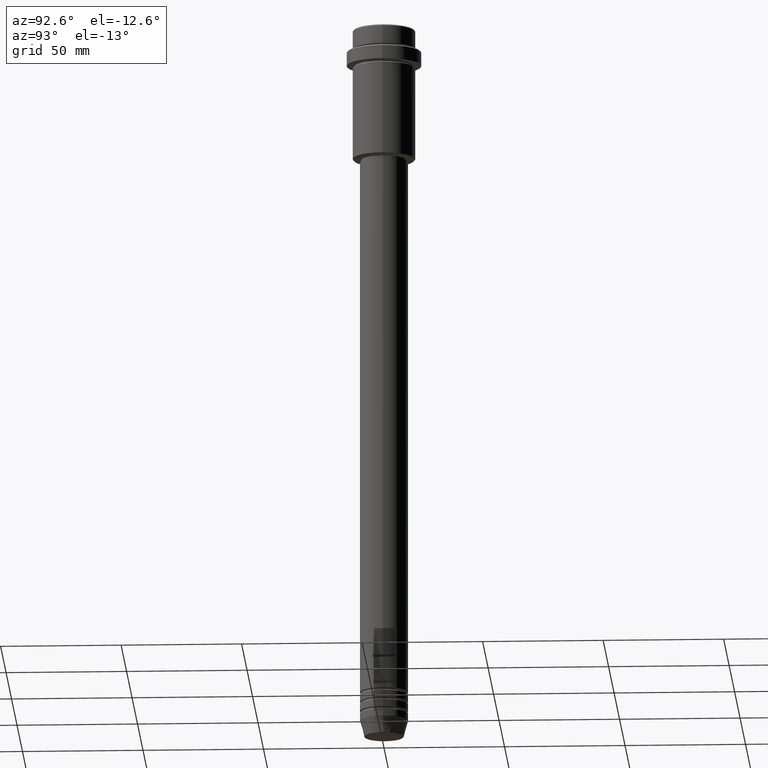
[diagram: clean part render]
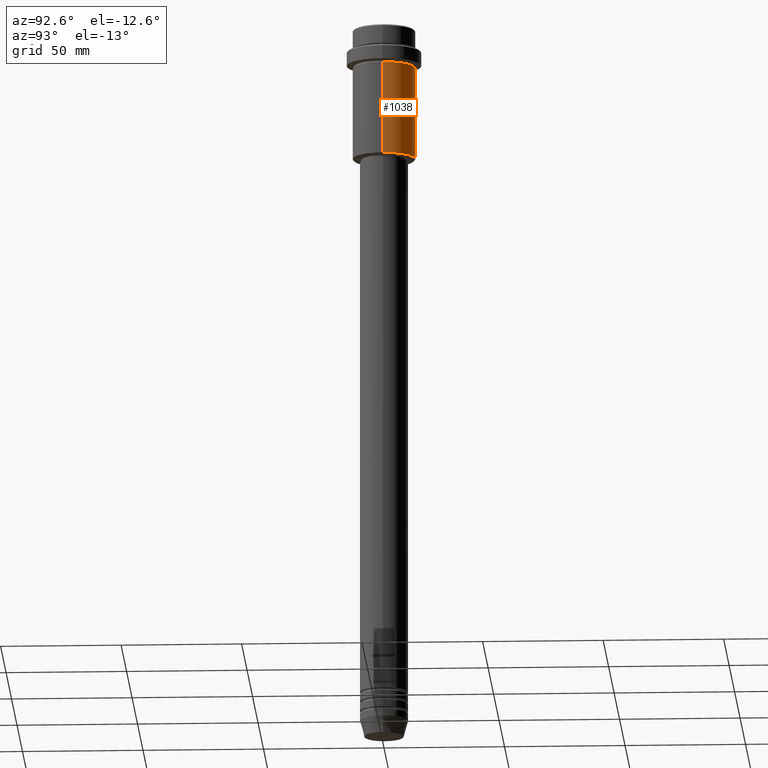
[diagram: same view with one face highlighted and labeled with its STEP entity id]
A machine part, auxiliary view. The second image highlights one B-rep face of the part: STEP entity #1038.
In plain terms, the highlighted cylindrical surface (edge-blend (fillet) strip) has radius 13 mm, axis along (-0, -0, 1).
Its self-contained STEP definition (entity closure, byte-faithful):
#12 = DIRECTION ( 'NONE',  ( -0.000000000000000000, -0.000000000000000000, 1.000000000000000000 ) ) ;
#16 = EDGE_LOOP ( 'NONE', ( #750, #1374, #1069, #978 ) ) ;
#46 = CARTESIAN_POINT ( 'NONE',  ( 13.00000000000000000, 0.000000000000000000, 0.000000000000000000 ) ) ;
#122 = AXIS2_PLACEMENT_3D ( 'NONE', #1296, #844, #297 ) ;
#123 = CARTESIAN_POINT ( 'NONE',  ( 13.00000000000000000, 0.000000000000000000, -54.49999999999997868 ) ) ;
#211 = VECTOR ( 'NONE', #231, 1000.000000000000000 ) ;
#231 = DIRECTION ( 'NONE',  ( -0.000000000000000000, -0.000000000000000000, 1.000000000000000000 ) ) ;
#236 = CIRCLE ( 'NONE', #122, 13.00000000000000000 ) ;
#297 = DIRECTION ( 'NONE',  ( 1.000000000000000000, 0.000000000000000000, 0.000000000000000000 ) ) ;
#339 = VERTEX_POINT ( 'NONE', #1010 ) ;
#384 = CYLINDRICAL_SURFACE ( 'NONE', #1332, 13.00000000000000000 ) ;
#407 = DIRECTION ( 'NONE',  ( -0.000000000000000000, -0.000000000000000000, 1.000000000000000000 ) ) ;
#411 = CIRCLE ( 'NONE', #1167, 13.00000000000000000 ) ;
#452 = VERTEX_POINT ( 'NONE', #680 ) ;
#478 = DIRECTION ( 'NONE',  ( -0.000000000000000000, -0.000000000000000000, 1.000000000000000000 ) ) ;
#496 = FACE_OUTER_BOUND ( 'NONE', #16, .T. ) ;
#549 = CARTESIAN_POINT ( 'NONE',  ( 0.000000000000000000, 0.000000000000000000, -54.49999999999997868 ) ) ;
#590 = EDGE_CURVE ( 'NONE', #452, #339, #236, .T. ) ;
#670 = CARTESIAN_POINT ( 'NONE',  ( -13.00000000000000000, 1.592040838891559095E-15, -54.49999999999997868 ) ) ;
#680 = CARTESIAN_POINT ( 'NONE',  ( 13.00000000000000000, 0.000000000000000000, -16.00000000000000000 ) ) ;
#745 = DIRECTION ( 'NONE',  ( 1.000000000000000000, 0.000000000000000000, 0.000000000000000000 ) ) ;
#750 = ORIENTED_EDGE ( 'NONE', *, *, #886, .T. ) ;
#769 = VERTEX_POINT ( 'NONE', #123 ) ;
#844 = DIRECTION ( 'NONE',  ( -0.000000000000000000, -0.000000000000000000, 1.000000000000000000 ) ) ;
#886 = EDGE_CURVE ( 'NONE', #769, #1352, #411, .T. ) ;
#900 = LINE ( 'NONE', #1237, #211 ) ;
#978 = ORIENTED_EDGE ( 'NONE', *, *, #1045, .F. ) ;
#986 = VECTOR ( 'NONE', #478, 1000.000000000000000 ) ;
#1010 = CARTESIAN_POINT ( 'NONE',  ( -13.00000000000000000, 1.592040838891559095E-15, -16.00000000000000000 ) ) ;
#1023 = LINE ( 'NONE', #46, #986 ) ;
#1038 = ADVANCED_FACE ( 'NONE', ( #496 ), #384, .T. ) ;
#1045 = EDGE_CURVE ( 'NONE', #769, #452, #1023, .T. ) ;
#1069 = ORIENTED_EDGE ( 'NONE', *, *, #590, .F. ) ;
#1167 = AXIS2_PLACEMENT_3D ( 'NONE', #549, #12, #1240 ) ;
#1237 = CARTESIAN_POINT ( 'NONE',  ( -13.00000000000000000, 1.592040838891559095E-15, 0.000000000000000000 ) ) ;
#1240 = DIRECTION ( 'NONE',  ( -1.000000000000000000, 0.000000000000000000, 0.000000000000000000 ) ) ;
#1291 = EDGE_CURVE ( 'NONE', #1352, #339, #900, .T. ) ;
#1296 = CARTESIAN_POINT ( 'NONE',  ( 0.000000000000000000, 0.000000000000000000, -16.00000000000000000 ) ) ;
#1332 = AXIS2_PLACEMENT_3D ( 'NONE', #1394, #407, #745 ) ;
#1352 = VERTEX_POINT ( 'NONE', #670 ) ;
#1374 = ORIENTED_EDGE ( 'NONE', *, *, #1291, .T. ) ;
#1394 = CARTESIAN_POINT ( 'NONE',  ( 0.000000000000000000, 0.000000000000000000, 0.000000000000000000 ) ) ;